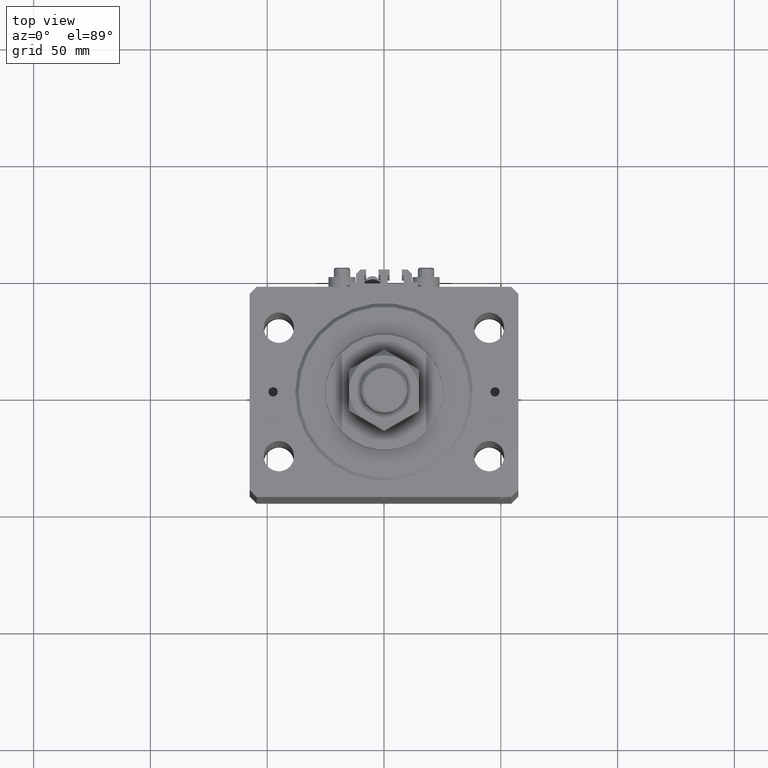
[diagram: clean part render]
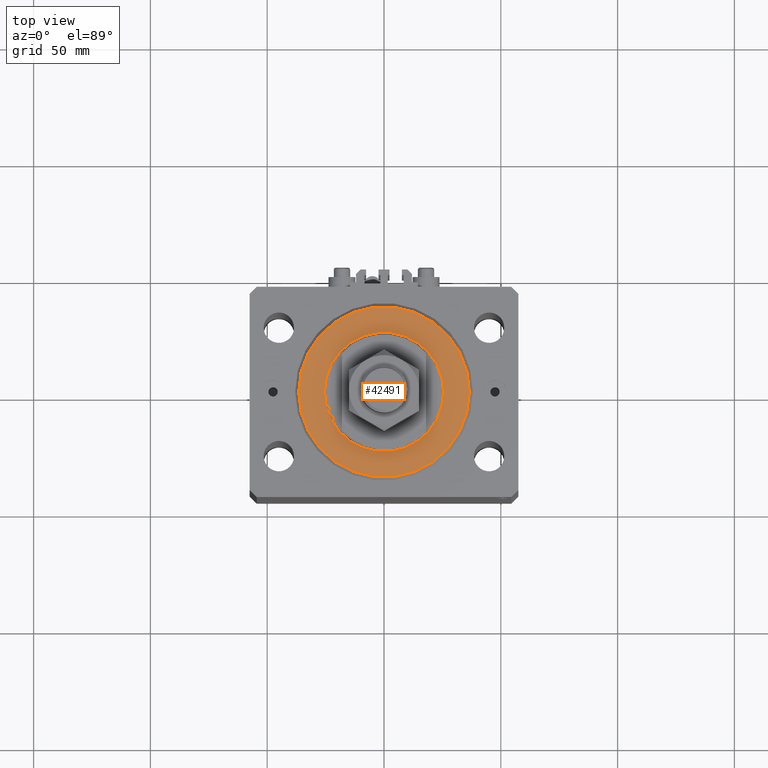
[diagram: same view with one face highlighted and labeled with its STEP entity id]
A machine part, top view. The second image highlights one B-rep face of the part: STEP entity #42491.
In plain terms, the highlighted planar face has unit normal (0, 0, -1).
Its self-contained STEP definition (entity closure, byte-faithful):
#361 = CARTESIAN_POINT ( 'NONE',  ( -36.50000000000000000, 4.561809326823889791E-15, 0.000000000000000000 ) ) ;
#386 = DIRECTION ( 'NONE',  ( 1.000000000000000000, 0.000000000000000000, 0.000000000000000000 ) ) ;
#2153 = CARTESIAN_POINT ( 'NONE',  ( 0.000000000000000000, 0.000000000000000000, 0.000000000000000000 ) ) ;
#2641 = CARTESIAN_POINT ( 'NONE',  ( 0.000000000000000000, 0.000000000000000000, 0.000000000000000000 ) ) ;
#3837 = AXIS2_PLACEMENT_3D ( 'NONE', #31734, #5158, #24210 ) ;
#5158 = DIRECTION ( 'NONE',  ( -0.000000000000000000, -0.000000000000000000, -1.000000000000000000 ) ) ;
#6814 = ORIENTED_EDGE ( 'NONE', *, *, #11967, .T. ) ;
#6866 = EDGE_CURVE ( 'NONE', #47525, #41496, #27492, .T. ) ;
#7025 = DIRECTION ( 'NONE',  ( 0.000000000000000000, 0.000000000000000000, 1.000000000000000000 ) ) ;
#7094 = EDGE_CURVE ( 'NONE', #7868, #22040, #13888, .T. ) ;
#7187 = DIRECTION ( 'NONE',  ( 0.000000000000000000, 0.000000000000000000, 1.000000000000000000 ) ) ;
#7868 = VERTEX_POINT ( 'NONE', #17267 ) ;
#9844 = FACE_OUTER_BOUND ( 'NONE', #43954, .T. ) ;
#11967 = EDGE_CURVE ( 'NONE', #41496, #47525, #18245, .T. ) ;
#13190 = DIRECTION ( 'NONE',  ( 1.000000000000000000, 0.000000000000000000, 0.000000000000000000 ) ) ;
#13888 = CIRCLE ( 'NONE', #25808, 25.50000000000000355 ) ;
#15887 = EDGE_LOOP ( 'NONE', ( #37188, #16047 ) ) ;
#16047 = ORIENTED_EDGE ( 'NONE', *, *, #7094, .T. ) ;
#17120 = FACE_BOUND ( 'NONE', #15887, .T. ) ;
#17267 = CARTESIAN_POINT ( 'NONE',  ( -25.50000000000000355, 3.122849337825751011E-15, 2.168404344971008868E-16 ) ) ;
#17927 = DIRECTION ( 'NONE',  ( 0.000000000000000000, 0.000000000000000000, 1.000000000000000000 ) ) ;
#18245 = CIRCLE ( 'NONE', #3837, 36.50000000000000000 ) ;
#18295 = DIRECTION ( 'NONE',  ( 1.000000000000000000, 0.000000000000000000, -0.000000000000000000 ) ) ;
#18971 = CARTESIAN_POINT ( 'NONE',  ( 25.50000000000000355, 0.000000000000000000, 2.168404344971008868E-16 ) ) ;
#19000 = AXIS2_PLACEMENT_3D ( 'NONE', #2641, #17927, #13190 ) ;
#20619 = CIRCLE ( 'NONE', #19000, 25.50000000000000355 ) ;
#22040 = VERTEX_POINT ( 'NONE', #18971 ) ;
#22222 = DIRECTION ( 'NONE',  ( 1.000000000000000000, 0.000000000000000000, 0.000000000000000000 ) ) ;
#24210 = DIRECTION ( 'NONE',  ( 1.000000000000000000, 0.000000000000000000, 0.000000000000000000 ) ) ;
#25808 = AXIS2_PLACEMENT_3D ( 'NONE', #34252, #7187, #386 ) ;
#27492 = CIRCLE ( 'NONE', #29906, 36.50000000000000000 ) ;
#28986 = DIRECTION ( 'NONE',  ( -0.000000000000000000, -0.000000000000000000, -1.000000000000000000 ) ) ;
#29906 = AXIS2_PLACEMENT_3D ( 'NONE', #2153, #28986, #22222 ) ;
#31467 = EDGE_CURVE ( 'NONE', #22040, #7868, #20619, .T. ) ;
#31734 = CARTESIAN_POINT ( 'NONE',  ( 0.000000000000000000, 0.000000000000000000, 0.000000000000000000 ) ) ;
#33058 = ORIENTED_EDGE ( 'NONE', *, *, #6866, .T. ) ;
#34252 = CARTESIAN_POINT ( 'NONE',  ( 0.000000000000000000, 0.000000000000000000, 0.000000000000000000 ) ) ;
#37188 = ORIENTED_EDGE ( 'NONE', *, *, #31467, .T. ) ;
#41496 = VERTEX_POINT ( 'NONE', #42911 ) ;
#42491 = ADVANCED_FACE ( 'NONE', ( #17120, #9844 ), #43961, .F. ) ;
#42911 = CARTESIAN_POINT ( 'NONE',  ( 36.50000000000000000, 0.000000000000000000, 0.000000000000000000 ) ) ;
#43954 = EDGE_LOOP ( 'NONE', ( #6814, #33058 ) ) ;
#43961 = PLANE ( 'NONE',  #44645 ) ;
#44645 = AXIS2_PLACEMENT_3D ( 'NONE', #49165, #7025, #18295 ) ;
#47525 = VERTEX_POINT ( 'NONE', #361 ) ;
#49165 = CARTESIAN_POINT ( 'NONE',  ( 0.000000000000000000, 0.000000000000000000, 0.000000000000000000 ) ) ;